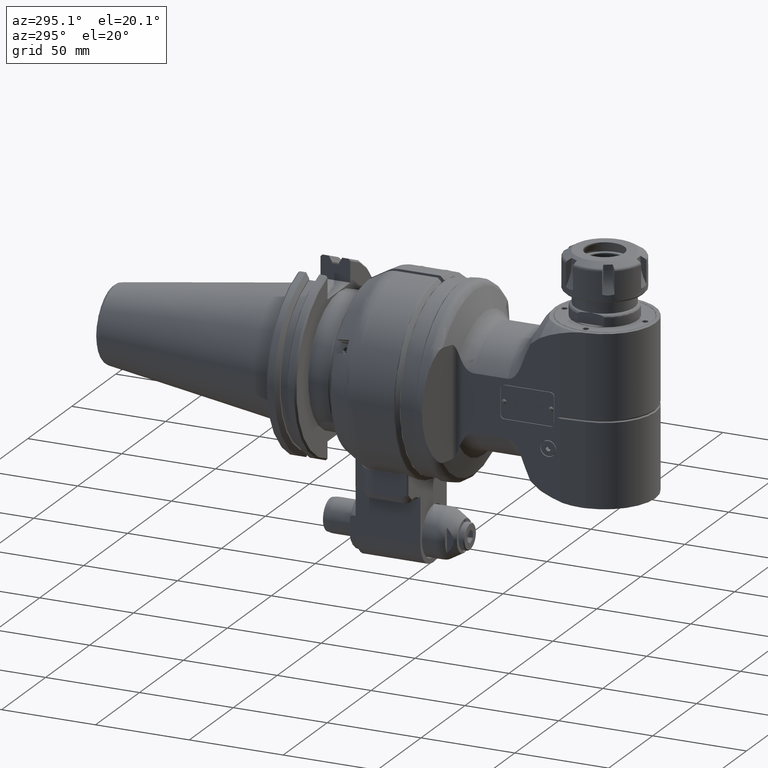
[diagram: clean part render]
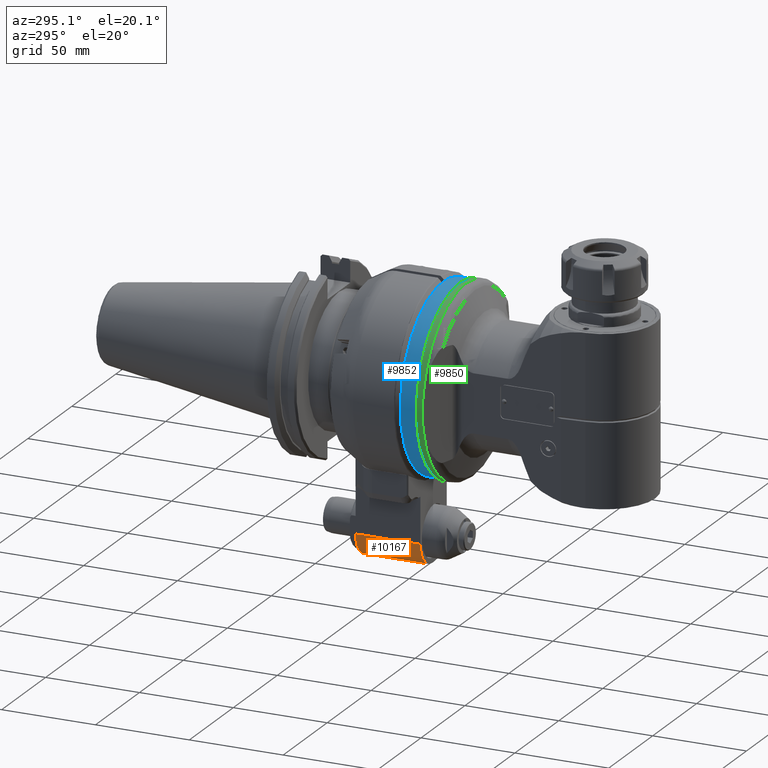
[diagram: same view with three faces highlighted in distinct colors, each labeled with its STEP entity id]
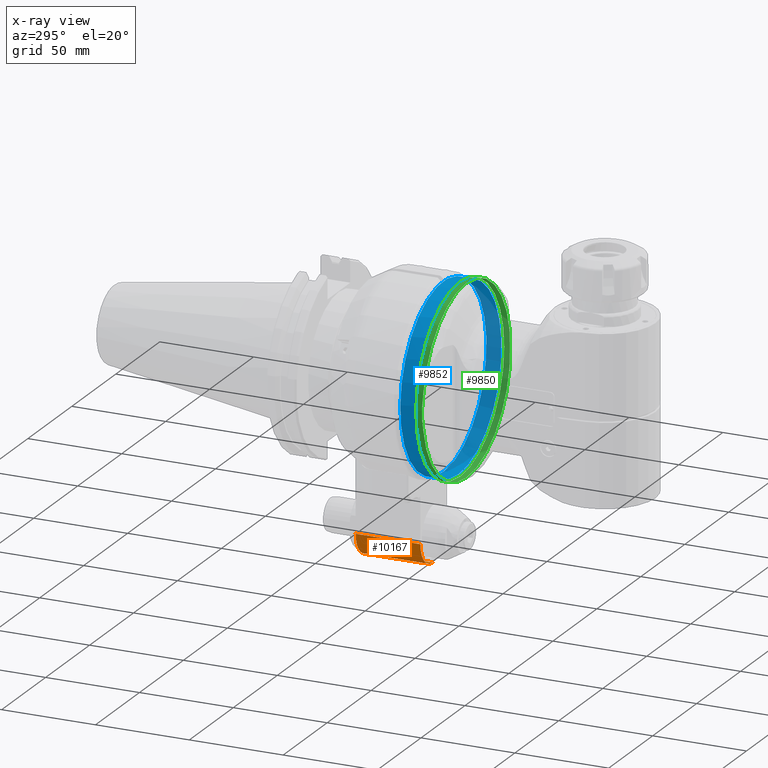
[diagram: x-ray of the same camera — body ghosted, the three highlighted faces saturated]
A machine part, auxiliary view with three faces highlighted in distinct colors.
The next image is the same camera in x-ray (body ghosted, the three faces saturated) — at least one of them is partly hidden behind the body in this view.
Their STEP definitions:

[orange] entity #10167 — the highlighted cylindrical surface (edge-blend (fillet) strip) has radius 14 mm, axis along (0, -1, 0).
#689=CYLINDRICAL_SURFACE('',#11224,14.);
#976=CIRCLE('',#10988,14.);
#1080=CIRCLE('',#11198,14.);
#1664=FACE_OUTER_BOUND('',#2330,.T.);
#2330=EDGE_LOOP('',(#8309,#8310,#8311,#8312));
#2997=LINE('',#19361,#3667);
#2998=LINE('',#19363,#3668);
#3667=VECTOR('',#13568,34.5);
#3668=VECTOR('',#13571,34.5);
#4379=VERTEX_POINT('',#17185);
#4380=VERTEX_POINT('',#17187);
#4569=VERTEX_POINT('',#19128);
#4570=VERTEX_POINT('',#19130);
#5578=EDGE_CURVE('',#4379,#4380,#976,.T.);
#5863=EDGE_CURVE('',#4569,#4570,#1080,.T.);
#5903=EDGE_CURVE('',#4379,#4570,#2997,.T.);
#5904=EDGE_CURVE('',#4569,#4380,#2998,.T.);
#8309=ORIENTED_EDGE('',*,*,#5903,.T.);
#8310=ORIENTED_EDGE('',*,*,#5863,.F.);
#8311=ORIENTED_EDGE('',*,*,#5904,.T.);
#8312=ORIENTED_EDGE('',*,*,#5578,.F.);
#10167=ADVANCED_FACE('',(#1664),#689,.T.);
#10988=AXIS2_PLACEMENT_3D('',#17188,#12952,#12953);
#11198=AXIS2_PLACEMENT_3D('',#19131,#13492,#13493);
#11224=AXIS2_PLACEMENT_3D('',#19362,#13569,#13570);
#12952=DIRECTION('center_axis',(0.,1.,0.));
#12953=DIRECTION('ref_axis',(0.,0.,-1.));
#13492=DIRECTION('center_axis',(0.,-1.,0.));
#13493=DIRECTION('ref_axis',(-1.,0.,0.));
#13568=DIRECTION('',(0.,-1.,0.));
#13569=DIRECTION('center_axis',(0.,-1.,0.));
#13570=DIRECTION('ref_axis',(0.,0.,-1.));
#13571=DIRECTION('',(0.,1.,0.));
#17185=CARTESIAN_POINT('',(-1.,39.5,-96.));
#17187=CARTESIAN_POINT('',(-15.,39.5,-82.));
#17188=CARTESIAN_POINT('Origin',(-1.,39.5,-82.));
#19128=CARTESIAN_POINT('',(-15.,5.,-82.));
#19130=CARTESIAN_POINT('',(-1.,5.,-96.));
#19131=CARTESIAN_POINT('Origin',(-1.,5.,-82.));
#19361=CARTESIAN_POINT('',(-1.,39.5,-96.));
#19362=CARTESIAN_POINT('Origin',(-1.,31.,-82.));
#19363=CARTESIAN_POINT('',(-15.,5.,-82.));

[blue] entity #9852 — the highlighted cylindrical surface (bore or boss wall) has radius 49 mm, axis along (0, -1, -0).
#590=CYLINDRICAL_SURFACE('',#10580,49.);
#791=CIRCLE('',#10578,49.);
#792=CIRCLE('',#10579,49.);
#793=CIRCLE('',#10581,49.);
#1349=FACE_OUTER_BOUND('',#1966,.T.);
#1966=EDGE_LOOP('',(#6742,#6743,#6744,#6745,#6746));
#2661=LINE('',#15550,#3331);
#3331=VECTOR('',#11946,49.);
#4078=VERTEX_POINT('',#15543);
#4079=VERTEX_POINT('',#15545);
#4080=VERTEX_POINT('',#15549);
#5114=EDGE_CURVE('',#4078,#4079,#791,.T.);
#5115=EDGE_CURVE('',#4079,#4078,#792,.T.);
#5116=EDGE_CURVE('',#4079,#4080,#2661,.T.);
#5117=EDGE_CURVE('',#4080,#4080,#793,.T.);
#6742=ORIENTED_EDGE('',*,*,#5115,.F.);
#6743=ORIENTED_EDGE('',*,*,#5116,.T.);
#6744=ORIENTED_EDGE('',*,*,#5117,.F.);
#6745=ORIENTED_EDGE('',*,*,#5116,.F.);
#6746=ORIENTED_EDGE('',*,*,#5114,.F.);
#9852=ADVANCED_FACE('',(#1349),#590,.T.);
#10578=AXIS2_PLACEMENT_3D('',#15546,#11940,#11941);
#10579=AXIS2_PLACEMENT_3D('',#15547,#11942,#11943);
#10580=AXIS2_PLACEMENT_3D('',#15548,#11944,#11945);
#10581=AXIS2_PLACEMENT_3D('',#15551,#11947,#11948);
#11940=DIRECTION('center_axis',(1.,0.,0.));
#11941=DIRECTION('ref_axis',(0.,-1.,0.));
#11942=DIRECTION('center_axis',(1.,0.,0.));
#11943=DIRECTION('ref_axis',(0.,-1.,0.));
#11944=DIRECTION('center_axis',(1.,0.,0.));
#11945=DIRECTION('ref_axis',(0.,0.0871557427476639,-0.996194698091745));
#11946=DIRECTION('',(-1.,0.,0.));
#11947=DIRECTION('center_axis',(-1.,0.,0.));
#11948=DIRECTION('ref_axis',(0.,-0.0871557427476639,0.996194698091745));
#15543=CARTESIAN_POINT('',(12.,49.,6.00076931582203E-15));
#15545=CARTESIAN_POINT('',(12.,-4.270631394635,48.8135402065));
#15546=CARTESIAN_POINT('Origin',(12.,0.,0.));
#15547=CARTESIAN_POINT('Origin',(12.,0.,0.));
#15548=CARTESIAN_POINT('Origin',(8.1,0.,0.));
#15549=CARTESIAN_POINT('',(4.000000000002,-4.270631394635,48.8135402065));
#15550=CARTESIAN_POINT('',(8.1,-4.27063139463554,48.8135402064955));
#15551=CARTESIAN_POINT('Origin',(4.000000000002,0.,0.));

[green] entity #9850 — the highlighted cylindrical surface (bore or boss wall) has radius 50 mm, axis along (-0, 1, 0).
#43=ELLIPSE('',#10563,53.2088886237962,50.);
#46=ELLIPSE('',#10569,53.2088886237962,50.);
#589=CYLINDRICAL_SURFACE('',#10572,50.);
#786=CIRCLE('',#10571,50.);
#787=CIRCLE('',#10573,50.);
#788=CIRCLE('',#10574,50.);
#789=CIRCLE('',#10575,50.);
#790=CIRCLE('',#10576,50.);
#1347=FACE_OUTER_BOUND('',#1964,.T.);
#1964=EDGE_LOOP('',(#6727,#6728,#6729,#6730,#6731,#6732,#6733,#6734,#6735));
#2659=LINE('',#15539,#3329);
#3329=VECTOR('',#11932,50.);
#4069=VERTEX_POINT('',#15446);
#4070=VERTEX_POINT('',#15465);
#4073=VERTEX_POINT('',#15492);
#4074=VERTEX_POINT('',#15511);
#4075=VERTEX_POINT('',#15534);
#4076=VERTEX_POINT('',#15535);
#4077=VERTEX_POINT('',#15538);
#5099=EDGE_CURVE('',#4069,#4070,#43,.T.);
#5105=EDGE_CURVE('',#4073,#4074,#46,.T.);
#5107=EDGE_CURVE('',#4074,#4069,#786,.T.);
#5108=EDGE_CURVE('',#4075,#4076,#787,.T.);
#5109=EDGE_CURVE('',#4076,#4075,#788,.T.);
#5110=EDGE_CURVE('',#4076,#4077,#2659,.T.);
#5111=EDGE_CURVE('',#4070,#4077,#789,.T.);
#5112=EDGE_CURVE('',#4077,#4073,#790,.T.);
#6727=ORIENTED_EDGE('',*,*,#5108,.F.);
#6728=ORIENTED_EDGE('',*,*,#5109,.F.);
#6729=ORIENTED_EDGE('',*,*,#5110,.T.);
#6730=ORIENTED_EDGE('',*,*,#5111,.F.);
#6731=ORIENTED_EDGE('',*,*,#5099,.F.);
#6732=ORIENTED_EDGE('',*,*,#5107,.F.);
#6733=ORIENTED_EDGE('',*,*,#5105,.F.);
#6734=ORIENTED_EDGE('',*,*,#5112,.F.);
#6735=ORIENTED_EDGE('',*,*,#5110,.F.);
#9850=ADVANCED_FACE('',(#1347),#589,.T.);
#10563=AXIS2_PLACEMENT_3D('',#15466,#11908,#11909);
#10569=AXIS2_PLACEMENT_3D('',#15512,#11920,#11921);
#10571=AXIS2_PLACEMENT_3D('',#15532,#11924,#11925);
#10572=AXIS2_PLACEMENT_3D('',#15533,#11926,#11927);
#10573=AXIS2_PLACEMENT_3D('',#15536,#11928,#11929);
#10574=AXIS2_PLACEMENT_3D('',#15537,#11930,#11931);
#10575=AXIS2_PLACEMENT_3D('',#15540,#11933,#11934);
#10576=AXIS2_PLACEMENT_3D('',#15541,#11935,#11936);
#11908=DIRECTION('center_axis',(0.939692620785897,0.,0.342020143325699));
#11909=DIRECTION('ref_axis',(0.342020143325699,0.,-0.939692620785897));
#11920=DIRECTION('center_axis',(0.939692620785897,0.,-0.342020143325699));
#11921=DIRECTION('ref_axis',(-0.342020143325699,0.,-0.939692620785897));
#11924=DIRECTION('center_axis',(1.,0.,0.));
#11925=DIRECTION('ref_axis',(0.,0.187279909699701,-0.982306589320703));
#11926=DIRECTION('center_axis',(-1.,0.,0.));
#11927=DIRECTION('ref_axis',(0.,1.,0.));
#11928=DIRECTION('center_axis',(-1.,0.,0.));
#11929=DIRECTION('ref_axis',(0.,1.,0.));
#11930=DIRECTION('center_axis',(-1.,0.,0.));
#11931=DIRECTION('ref_axis',(0.,1.,0.));
#11932=DIRECTION('',(1.,0.,0.));
#11933=DIRECTION('center_axis',(1.,0.,0.));
#11934=DIRECTION('ref_axis',(0.,-0.1872799096992,0.982306589320798));
#11935=DIRECTION('center_axis',(1.,0.,0.));
#11936=DIRECTION('ref_axis',(0.,-0.1872799096992,0.982306589320798));
#15446=CARTESIAN_POINT('',(16.31464863572,9.363995485014,49.11532946603));
#15465=CARTESIAN_POINT('',(16.31464863573,-9.363995485039,49.11532946603));
#15466=CARTESIAN_POINT('Origin',(34.1911666075347,0.,0.));
#15492=CARTESIAN_POINT('',(16.31464863572,-9.363995484987,-49.11532946603));
#15511=CARTESIAN_POINT('',(16.31464863573,9.36399548502,-49.11532946603));
#15512=CARTESIAN_POINT('Origin',(34.1911666075347,0.,0.));
#15532=CARTESIAN_POINT('Origin',(16.31464863572,0.,0.));
#15533=CARTESIAN_POINT('Origin',(54.606251,0.,0.));
#15534=CARTESIAN_POINT('',(13.,50.,0.));
#15535=CARTESIAN_POINT('',(13.,-50.,6.12323399573677E-15));
#15536=CARTESIAN_POINT('Origin',(13.,0.,0.));
#15537=CARTESIAN_POINT('Origin',(13.,0.,0.));
#15538=CARTESIAN_POINT('',(16.3146486357221,-50.,6.12323399573677E-15));
#15539=CARTESIAN_POINT('',(54.606251,-50.,6.12323399573677E-15));
#15540=CARTESIAN_POINT('Origin',(16.31464863572,0.,0.));
#15541=CARTESIAN_POINT('Origin',(16.31464863572,0.,0.));